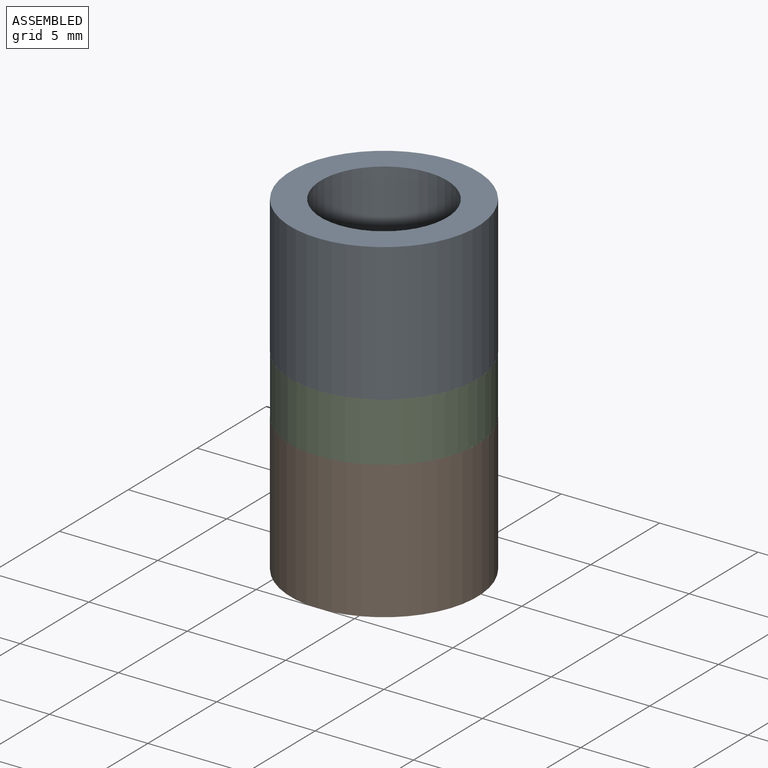
[diagram: assembled view]
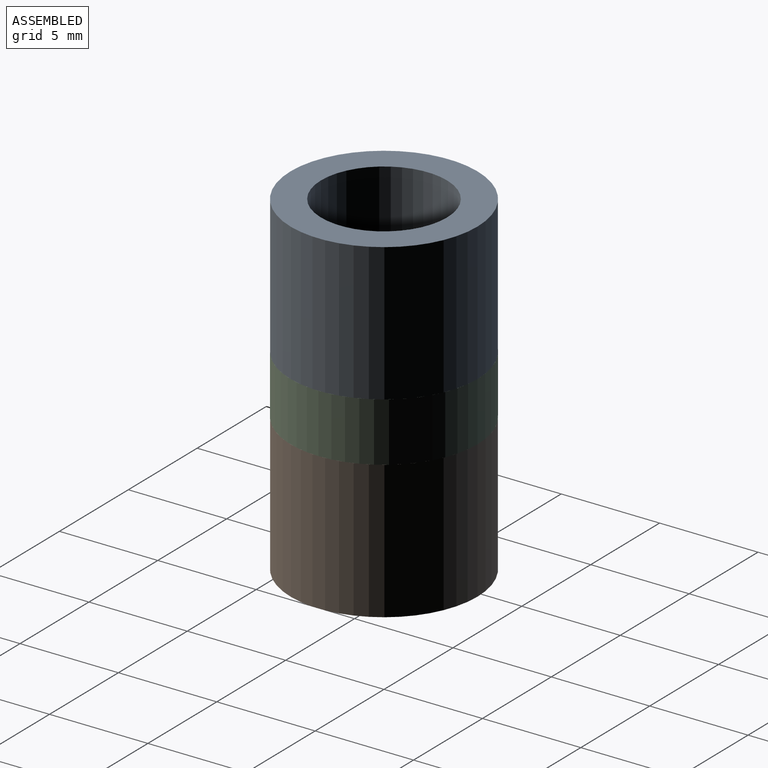
[diagram: assembled view, second angle]
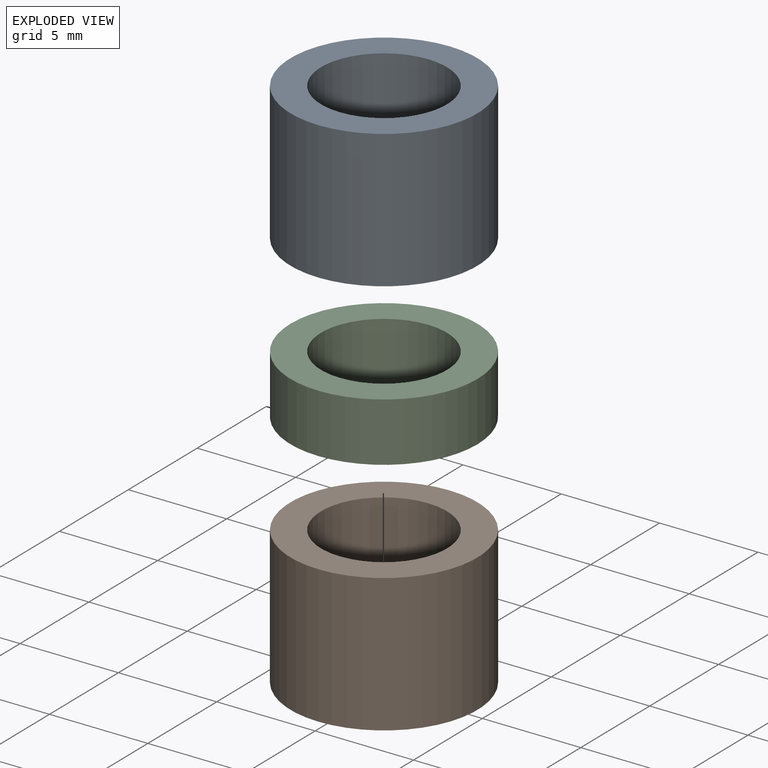
[diagram: exploded view]
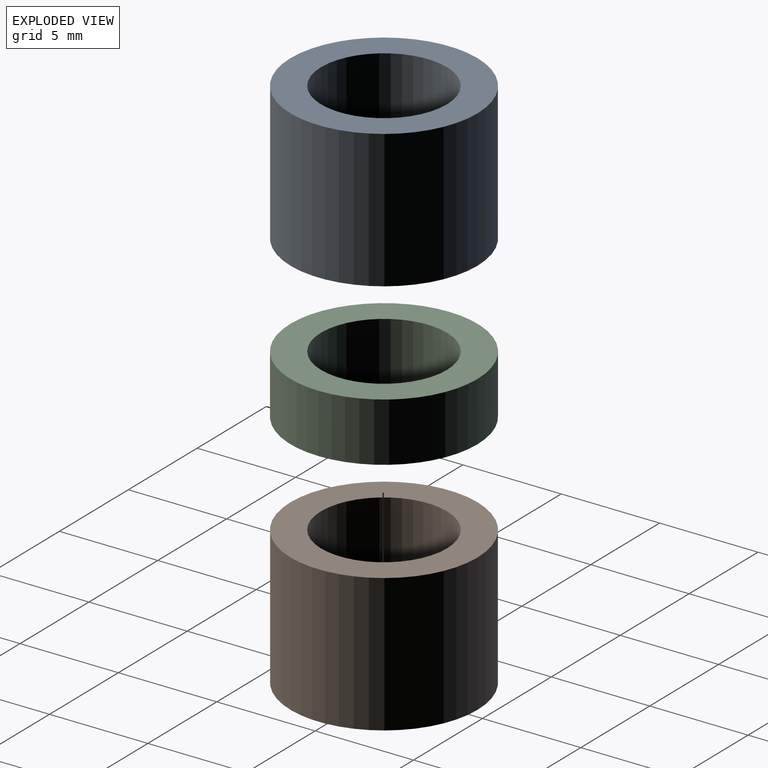
[diagram: exploded view, second angle]
ASSEMBLY  parts=3 mates=2
PART A: 4 faces, bbox 9.5x9.5x7 mm
  f0: cylinder r=3.2mm len=7mm, axis (0,0,-1), area 140.7mm2, adj f2,f3
  f1: cylinder r=4.75mm len=9.5mm, axis (0,0,-1), area 208.9mm2, adj f2,f3
  f2: plane 9.5x9.5mm, normal (0,0,1), area 38.7mm2, adj f0,f1
  f3: plane 9.5x9.5mm, normal (0,0,-1), area 38.7mm2, adj f0,f1
PART B: 4 faces, bbox 9.5x9.5x7 mm
  f0: cylinder r=3.2mm len=7mm, axis (0,0,-1), area 140.7mm2, adj f2,f3
  f1: cylinder r=4.75mm len=9.5mm, axis (0,0,-1), area 208.9mm2, adj f2,f3
  f2: plane 9.5x9.5mm, normal (0,0,1), area 38.7mm2, adj f0,f1
  f3: plane 9.5x9.5mm, normal (0,0,-1), area 38.7mm2, adj f0,f1
PART C: 4 faces, bbox 9.5x9.5x3 mm
  f0: cylinder r=3.2mm len=6.4mm, axis (0,0,-1), area 60.3mm2, adj f2,f3
  f1: cylinder r=4.75mm len=9.5mm, axis (0,0,-1), area 89.5mm2, adj f2,f3
  f2: plane 9.5x9.5mm, normal (0,0,1), area 38.7mm2, adj f0,f1
  f3: plane 9.5x9.5mm, normal (0,0,-1), area 38.7mm2, adj f0,f1
PLACE A at identity
PLACE B at identity
PLACE C at identity fixed
MATE fastened A.f0 <-> C.f0  axis (0,0,-1) through (0,0,10)mm
MATE fastened B.f0 <-> C.f0  axis (0,0,1) through (0,0,7)mm
